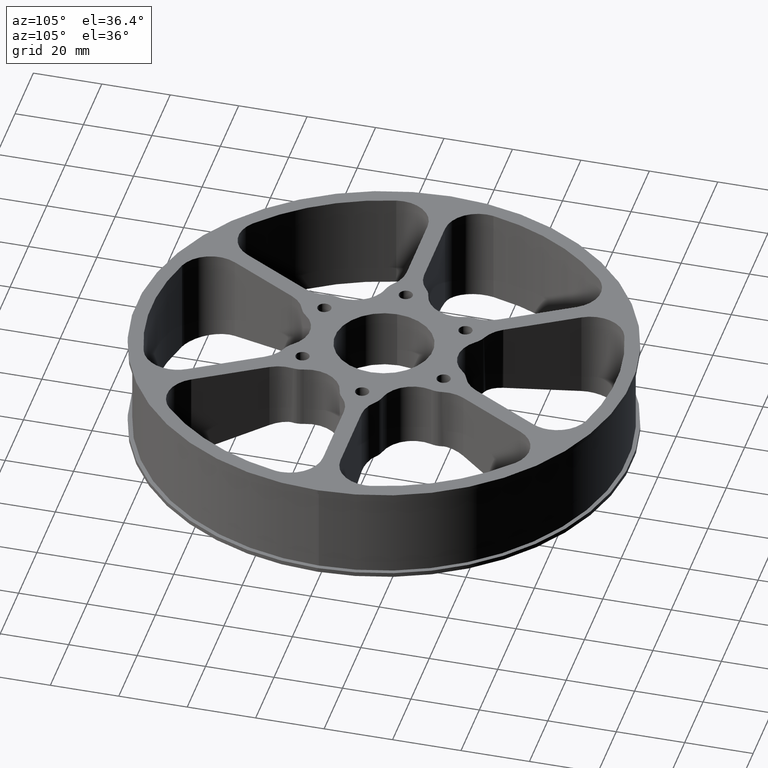
[diagram: clean part render]
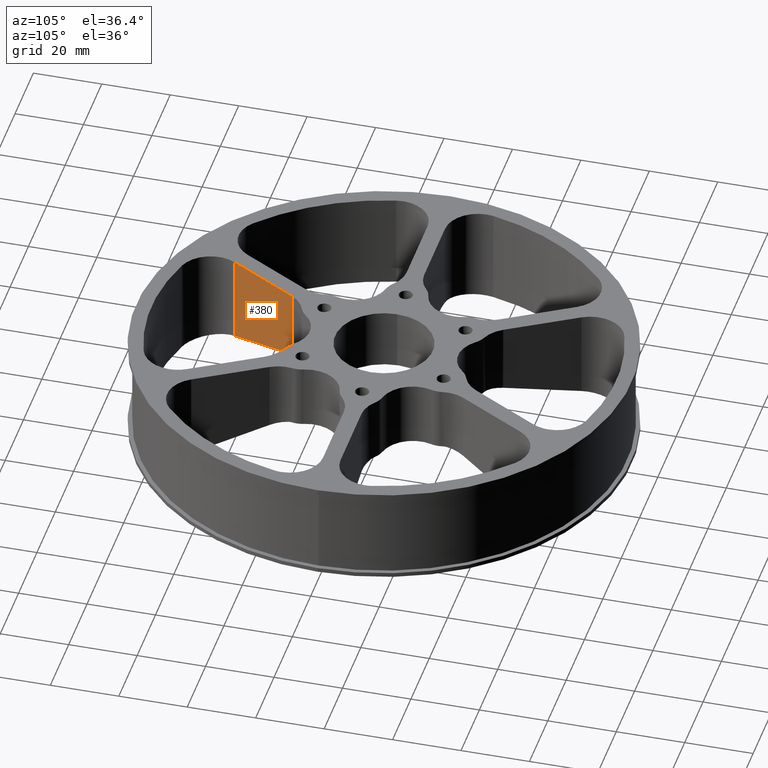
[diagram: same view with one face highlighted and labeled with its STEP entity id]
A machine part, auxiliary view. The second image highlights one B-rep face of the part: STEP entity #380.
In plain terms, the highlighted planar face has unit normal (-0.866, 0.5, 0).
Its self-contained STEP definition (entity closure, byte-faithful):
#174 = VECTOR ( 'NONE', #652, 39.37007874015748143 ) ;
#250 = FACE_OUTER_BOUND ( 'NONE', #3103, .T. ) ;
#253 = CARTESIAN_POINT ( 'NONE',  ( -0.5861695172526096842, -1.215275385729605695, 0.3246983252277150234 ) ) ;
#345 = VERTEX_POINT ( 'NONE', #1031 ) ;
#361 = PLANE ( 'NONE',  #858 ) ;
#380 = ADVANCED_FACE ( 'NONE', ( #250 ), #361, .F. ) ;
#469 = VERTEX_POINT ( 'NONE', #3562 ) ;
#588 = CARTESIAN_POINT ( 'NONE',  ( -0.8857410842204928025, -1.734148560220990509, 0.1809588936208280374 ) ) ;
#652 = DIRECTION ( 'NONE',  ( 0.0000000000000000000, 0.0000000000000000000, -1.000000000000000000 ) ) ;
#733 = DIRECTION ( 'NONE',  ( -0.5000000000000084377, -0.8660254037844337116, 0.0000000000000000000 ) ) ;
#747 = CARTESIAN_POINT ( 'NONE',  ( -1.035518776592253776, -1.993571133249296023, 0.1090217662803020376 ) ) ;
#858 = AXIS2_PLACEMENT_3D ( 'NONE', #1978, #887, #1214 ) ;
#872 = ORIENTED_EDGE ( 'NONE', *, *, #1504, .F. ) ;
#887 = DIRECTION ( 'NONE',  ( -0.8660254037844338226, 0.5000000000000085487, 0.0000000000000000000 ) ) ;
#993 = VECTOR ( 'NONE', #2242, 39.37007874015748143 ) ;
#1031 = CARTESIAN_POINT ( 'NONE',  ( -1.035518776592253554, -1.993571133249295801, 1.125000000000000000 ) ) ;
#1092 = EDGE_CURVE ( 'NONE', #469, #3535, #2471, .T. ) ;
#1214 = DIRECTION ( 'NONE',  ( -0.5000000000000084377, -0.8660254037844337116, 0.0000000000000000000 ) ) ;
#1244 = CARTESIAN_POINT ( 'NONE',  ( -0.5861695172526096842, -1.215275385729605695, 0.0000000000000000000 ) ) ;
#1330 = LINE ( 'NONE', #2269, #3415 ) ;
#1504 = EDGE_CURVE ( 'NONE', #469, #2174, #3634, .T. ) ;
#1978 = CARTESIAN_POINT ( 'NONE',  ( -1.249962553434825097, -2.364998650107583256, 0.0000000000000000000 ) ) ;
#2041 = EDGE_CURVE ( 'NONE', #345, #2174, #2639, .T. ) ;
#2174 = VERTEX_POINT ( 'NONE', #747 ) ;
#2242 = DIRECTION ( 'NONE',  ( -0.0000000000000000000, 0.0000000000000000000, 1.000000000000000000 ) ) ;
#2269 = CARTESIAN_POINT ( 'NONE',  ( -1.249962553434825097, -2.364998650107583256, 1.125000000000000000 ) ) ;
#2302 = EDGE_CURVE ( 'NONE', #3535, #345, #1330, .T. ) ;
#2471 = LINE ( 'NONE', #1244, #993 ) ;
#2511 = CARTESIAN_POINT ( 'NONE',  ( -0.7359615855355029490, -1.474722858566398065, 0.2528809715653633772 ) ) ;
#2639 = LINE ( 'NONE', #3668, #174 ) ;
#2724 = CARTESIAN_POINT ( 'NONE',  ( -0.5861695172526096842, -1.215275385729605695, 1.125000000000000000 ) ) ;
#2835 = CARTESIAN_POINT ( 'NONE',  ( -1.035518776592253776, -1.993571133249296023, 0.1090217662803020376 ) ) ;
#3103 = EDGE_LOOP ( 'NONE', ( #3930, #3574, #872, #4187 ) ) ;
#3415 = VECTOR ( 'NONE', #733, 39.37007874015748854 ) ;
#3535 = VERTEX_POINT ( 'NONE', #2724 ) ;
#3562 = CARTESIAN_POINT ( 'NONE',  ( -0.5861695172526096842, -1.215275385729605695, 0.3246983252277150234 ) ) ;
#3574 = ORIENTED_EDGE ( 'NONE', *, *, #2041, .T. ) ;
#3634 = B_SPLINE_CURVE_WITH_KNOTS ( 'NONE', 3,
 ( #253, #2511, #588, #2835 ),
 .UNSPECIFIED., .F., .F.,
 ( 4, 4 ),
 ( 2.374831638847536988E-07, 0.02347532646394983116 ),
 .UNSPECIFIED. ) ;
#3668 = CARTESIAN_POINT ( 'NONE',  ( -1.035518776592253776, -1.993571133249295801, 0.006009615384616141288 ) ) ;
#3930 = ORIENTED_EDGE ( 'NONE', *, *, #2302, .T. ) ;
#4187 = ORIENTED_EDGE ( 'NONE', *, *, #1092, .T. ) ;